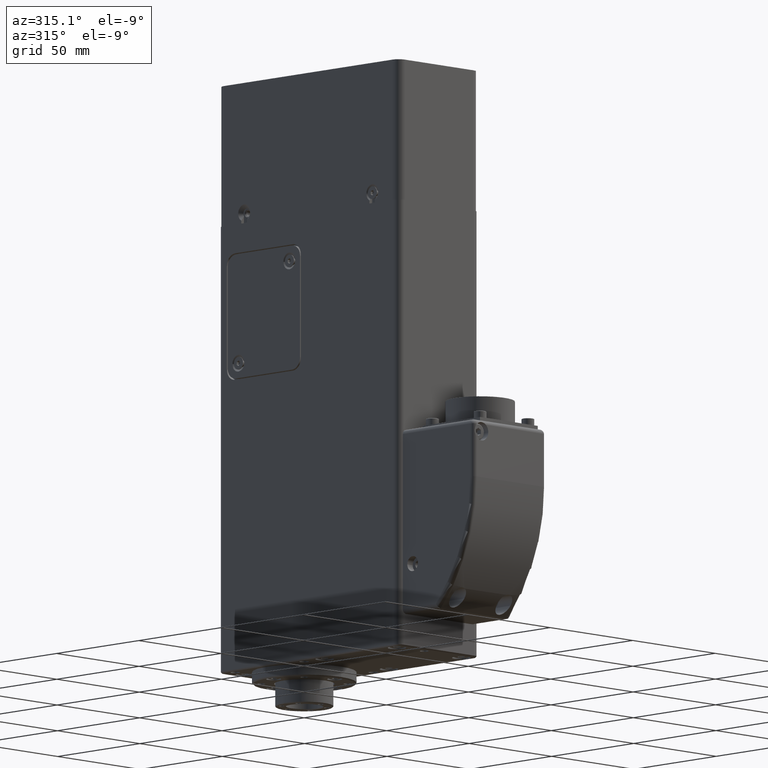
[diagram: clean part render]
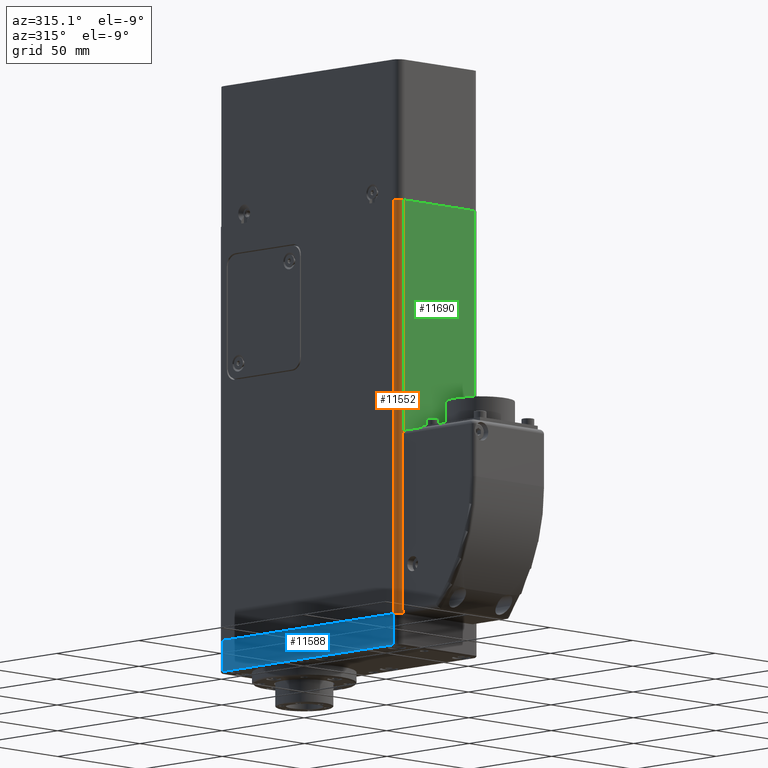
[diagram: same view with three faces highlighted in distinct colors, each labeled with its STEP entity id]
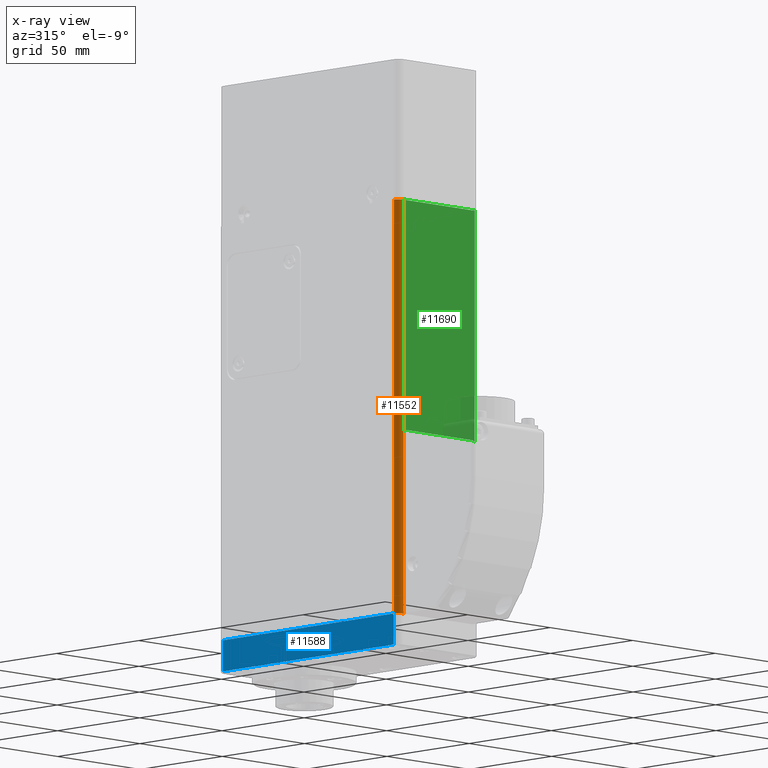
[diagram: x-ray of the same camera — body ghosted, the three highlighted faces saturated]
A machine part, auxiliary view with three faces highlighted in distinct colors.
The next image is the same camera in x-ray (body ghosted, the three faces saturated) — at least one of them is partly hidden behind the body in this view.
Their STEP definitions:

[orange] entity #11552 — the highlighted cylindrical surface (edge-blend (fillet) strip) has radius 3 mm, axis along (0, 0, 1).
#436=CYLINDRICAL_SURFACE('',#12484,3.);
#840=CIRCLE('',#12485,3.);
#841=CIRCLE('',#12486,3.);
#1431=FACE_OUTER_BOUND('',#2143,.T.);
#2143=EDGE_LOOP('',(#8345,#8346,#8347,#8348,#8349,#8350));
#3045=LINE('',#18310,#3927);
#3076=LINE('',#18442,#3958);
#3077=LINE('',#18444,#3959);
#3078=LINE('',#18445,#3960);
#3927=VECTOR('',#14469,10.);
#3958=VECTOR('',#14616,10.);
#3959=VECTOR('',#14617,10.);
#3960=VECTOR('',#14618,10.);
#4864=VERTEX_POINT('',#18308);
#4865=VERTEX_POINT('',#18309);
#4906=VERTEX_POINT('',#18437);
#4907=VERTEX_POINT('',#18439);
#4908=VERTEX_POINT('',#18441);
#4909=VERTEX_POINT('',#18443);
#6107=EDGE_CURVE('',#4864,#4865,#3045,.T.);
#6167=EDGE_CURVE('',#4906,#4864,#840,.T.);
#6168=EDGE_CURVE('',#4865,#4907,#841,.T.);
#6169=EDGE_CURVE('',#4907,#4908,#3076,.T.);
#6170=EDGE_CURVE('',#4908,#4909,#3077,.T.);
#6171=EDGE_CURVE('',#4909,#4906,#3078,.T.);
#8345=ORIENTED_EDGE('',*,*,#6167,.T.);
#8346=ORIENTED_EDGE('',*,*,#6107,.T.);
#8347=ORIENTED_EDGE('',*,*,#6168,.T.);
#8348=ORIENTED_EDGE('',*,*,#6169,.T.);
#8349=ORIENTED_EDGE('',*,*,#6170,.T.);
#8350=ORIENTED_EDGE('',*,*,#6171,.T.);
#11552=ADVANCED_FACE('',(#1431),#436,.T.);
#12484=AXIS2_PLACEMENT_3D('',#18436,#14610,#14611);
#12485=AXIS2_PLACEMENT_3D('',#18438,#14612,#14613);
#12486=AXIS2_PLACEMENT_3D('',#18440,#14614,#14615);
#14469=DIRECTION('',(0.,0.,-1.));
#14610=DIRECTION('center_axis',(0.,0.,1.));
#14611=DIRECTION('ref_axis',(-0.707106781186548,-0.707106781186548,0.));
#14612=DIRECTION('center_axis',(0.,0.,-1.));
#14613=DIRECTION('ref_axis',(-0.707106781186548,-0.707106781186548,0.));
#14614=DIRECTION('center_axis',(0.,0.,1.));
#14615=DIRECTION('ref_axis',(-0.707106781186548,-0.707106781186548,0.));
#14616=DIRECTION('',(0.,0.,1.));
#14617=DIRECTION('',(0.,0.,1.));
#14618=DIRECTION('',(0.,0.,1.));
#18308=CARTESIAN_POINT('',(-24.5,-79.,180.));
#18309=CARTESIAN_POINT('',(-24.5,-79.,0.));
#18310=CARTESIAN_POINT('',(-24.5,-79.,0.));
#18436=CARTESIAN_POINT('Origin',(-21.5,-79.,0.));
#18437=CARTESIAN_POINT('',(-21.5,-82.,180.));
#18438=CARTESIAN_POINT('Origin',(-21.5,-79.,180.));
#18439=CARTESIAN_POINT('',(-21.5,-82.,0.));
#18440=CARTESIAN_POINT('Origin',(-21.5,-79.,0.));
#18441=CARTESIAN_POINT('',(-21.5,-82.,0.677124344467676));
#18442=CARTESIAN_POINT('',(-21.5,-82.,0.));
#18443=CARTESIAN_POINT('',(-21.5,-82.,79.3228756555323));
#18444=CARTESIAN_POINT('',(-21.5,-82.,0.));
#18445=CARTESIAN_POINT('',(-21.5,-82.,0.));

[blue] entity #11588 — the highlighted planar face has unit normal (-1, 0, 0).
#1467=FACE_OUTER_BOUND('',#2196,.T.);
#2196=EDGE_LOOP('',(#8505,#8506,#8507,#8508));
#3054=LINE('',#18327,#3936);
#3122=LINE('',#18624,#4004);
#3124=LINE('',#18651,#4006);
#3125=LINE('',#18652,#4007);
#3936=VECTOR('',#14478,10.);
#4004=VECTOR('',#14812,10.);
#4006=VECTOR('',#14840,10.);
#4007=VECTOR('',#14841,10.);
#4865=VERTEX_POINT('',#18309);
#4873=VERTEX_POINT('',#18325);
#4969=VERTEX_POINT('',#18622);
#4981=VERTEX_POINT('',#18650);
#6116=EDGE_CURVE('',#4865,#4873,#3054,.T.);
#6256=EDGE_CURVE('',#4865,#4969,#3122,.T.);
#6269=EDGE_CURVE('',#4969,#4981,#3124,.T.);
#6270=EDGE_CURVE('',#4981,#4873,#3125,.T.);
#8505=ORIENTED_EDGE('',*,*,#6269,.F.);
#8506=ORIENTED_EDGE('',*,*,#6256,.F.);
#8507=ORIENTED_EDGE('',*,*,#6116,.T.);
#8508=ORIENTED_EDGE('',*,*,#6270,.F.);
#10420=PLANE('',#12574);
#11588=ADVANCED_FACE('',(#1467),#10420,.T.);
#12574=AXIS2_PLACEMENT_3D('',#18649,#14838,#14839);
#14478=DIRECTION('',(8.07434927000114E-17,1.,0.));
#14812=DIRECTION('',(0.,0.,-1.));
#14838=DIRECTION('center_axis',(-1.,1.36254643931269E-16,0.));
#14839=DIRECTION('ref_axis',(-1.36254643931269E-16,-1.,0.));
#14840=DIRECTION('',(1.36254643931269E-16,1.,0.));
#14841=DIRECTION('',(0.,0.,1.));
#18309=CARTESIAN_POINT('',(-24.5,-79.,0.));
#18325=CARTESIAN_POINT('',(-24.5,25.,0.));
#18327=CARTESIAN_POINT('',(-24.5,-82.,0.));
#18622=CARTESIAN_POINT('',(-24.5,-79.,-13.5));
#18624=CARTESIAN_POINT('',(-24.5,-79.,-14.));
#18649=CARTESIAN_POINT('Origin',(-24.5,28.,-14.));
#18650=CARTESIAN_POINT('',(-24.5,25.,-13.5));
#18651=CARTESIAN_POINT('',(-24.5,0.500000000000007,-13.5));
#18652=CARTESIAN_POINT('',(-24.5,25.,-14.));

[green] entity #11690 — the highlighted planar face has unit normal (0, -1, 0).
#985=CIRCLE('',#12768,2.);
#986=CIRCLE('',#12769,2.);
#1569=FACE_OUTER_BOUND('',#2340,.T.);
#2340=EDGE_LOOP('',(#9017,#9018,#9019,#9020,#9021,#9022,#9023,#9024));
#3078=LINE('',#18445,#3960);
#3094=LINE('',#18487,#3976);
#3246=LINE('',#19080,#4128);
#3247=LINE('',#19083,#4129);
#3248=LINE('',#19085,#4130);
#3249=LINE('',#19086,#4131);
#3960=VECTOR('',#14618,10.);
#3976=VECTOR('',#14652,10.);
#4128=VECTOR('',#15350,10.);
#4129=VECTOR('',#15353,10.);
#4130=VECTOR('',#15354,10.);
#4131=VECTOR('',#15355,10.);
#4906=VERTEX_POINT('',#18437);
#4909=VERTEX_POINT('',#18443);
#4925=VERTEX_POINT('',#18484);
#4926=VERTEX_POINT('',#18486);
#5093=VERTEX_POINT('',#19077);
#5094=VERTEX_POINT('',#19079);
#5095=VERTEX_POINT('',#19082);
#5096=VERTEX_POINT('',#19084);
#6171=EDGE_CURVE('',#4909,#4906,#3078,.T.);
#6191=EDGE_CURVE('',#4925,#4926,#3094,.T.);
#6482=EDGE_CURVE('',#4909,#5093,#985,.T.);
#6483=EDGE_CURVE('',#5093,#5094,#3246,.T.);
#6484=EDGE_CURVE('',#5094,#4926,#986,.T.);
#6485=EDGE_CURVE('',#5095,#4925,#3247,.T.);
#6486=EDGE_CURVE('',#5096,#5095,#3248,.T.);
#6487=EDGE_CURVE('',#4906,#5096,#3249,.T.);
#9017=ORIENTED_EDGE('',*,*,#6482,.T.);
#9018=ORIENTED_EDGE('',*,*,#6483,.T.);
#9019=ORIENTED_EDGE('',*,*,#6484,.T.);
#9020=ORIENTED_EDGE('',*,*,#6191,.F.);
#9021=ORIENTED_EDGE('',*,*,#6485,.F.);
#9022=ORIENTED_EDGE('',*,*,#6486,.F.);
#9023=ORIENTED_EDGE('',*,*,#6487,.F.);
#9024=ORIENTED_EDGE('',*,*,#6171,.F.);
#10466=PLANE('',#12767);
#11690=ADVANCED_FACE('',(#1569),#10466,.T.);
#12767=AXIS2_PLACEMENT_3D('',#19076,#15346,#15347);
#12768=AXIS2_PLACEMENT_3D('',#19078,#15348,#15349);
#12769=AXIS2_PLACEMENT_3D('',#19081,#15351,#15352);
#14618=DIRECTION('',(0.,0.,1.));
#14652=DIRECTION('',(0.,0.,-1.));
#15346=DIRECTION('center_axis',(0.,-1.,0.));
#15347=DIRECTION('ref_axis',(1.,0.,0.));
#15348=DIRECTION('center_axis',(0.,1.,0.));
#15349=DIRECTION('ref_axis',(-0.707106781186548,3.03084619682422E-16,0.707106781186547));
#15350=DIRECTION('',(1.,0.,1.38777878078145E-16));
#15351=DIRECTION('center_axis',(0.,1.,0.));
#15352=DIRECTION('ref_axis',(0.707106781186547,3.03084619682423E-16,0.707106781186548));
#15353=DIRECTION('',(1.,0.,0.));
#15354=DIRECTION('',(1.,0.,0.));
#15355=DIRECTION('',(1.,0.,0.));
#18437=CARTESIAN_POINT('',(-21.5,-82.,180.));
#18443=CARTESIAN_POINT('',(-21.5,-82.,79.3228756555323));
#18445=CARTESIAN_POINT('',(-21.5,-82.,0.));
#18484=CARTESIAN_POINT('',(21.5,-82.,180.));
#18486=CARTESIAN_POINT('',(21.5,-82.,79.3228756555322));
#18487=CARTESIAN_POINT('',(21.5,-82.,0.));
#19076=CARTESIAN_POINT('Origin',(-24.5,-82.,0.));
#19077=CARTESIAN_POINT('',(-20.,-82.,80.));
#19078=CARTESIAN_POINT('Origin',(-20.,-82.,78.));
#19079=CARTESIAN_POINT('',(20.,-82.,80.));
#19080=CARTESIAN_POINT('',(-10.5,-82.,80.));
#19081=CARTESIAN_POINT('Origin',(20.,-82.,78.));
#19082=CARTESIAN_POINT('',(20.9,-82.,180.));
#19083=CARTESIAN_POINT('',(24.5,-82.,180.));
#19084=CARTESIAN_POINT('',(-20.9,-82.,180.));
#19085=CARTESIAN_POINT('',(24.5,-82.,180.));
#19086=CARTESIAN_POINT('',(24.5,-82.,180.));